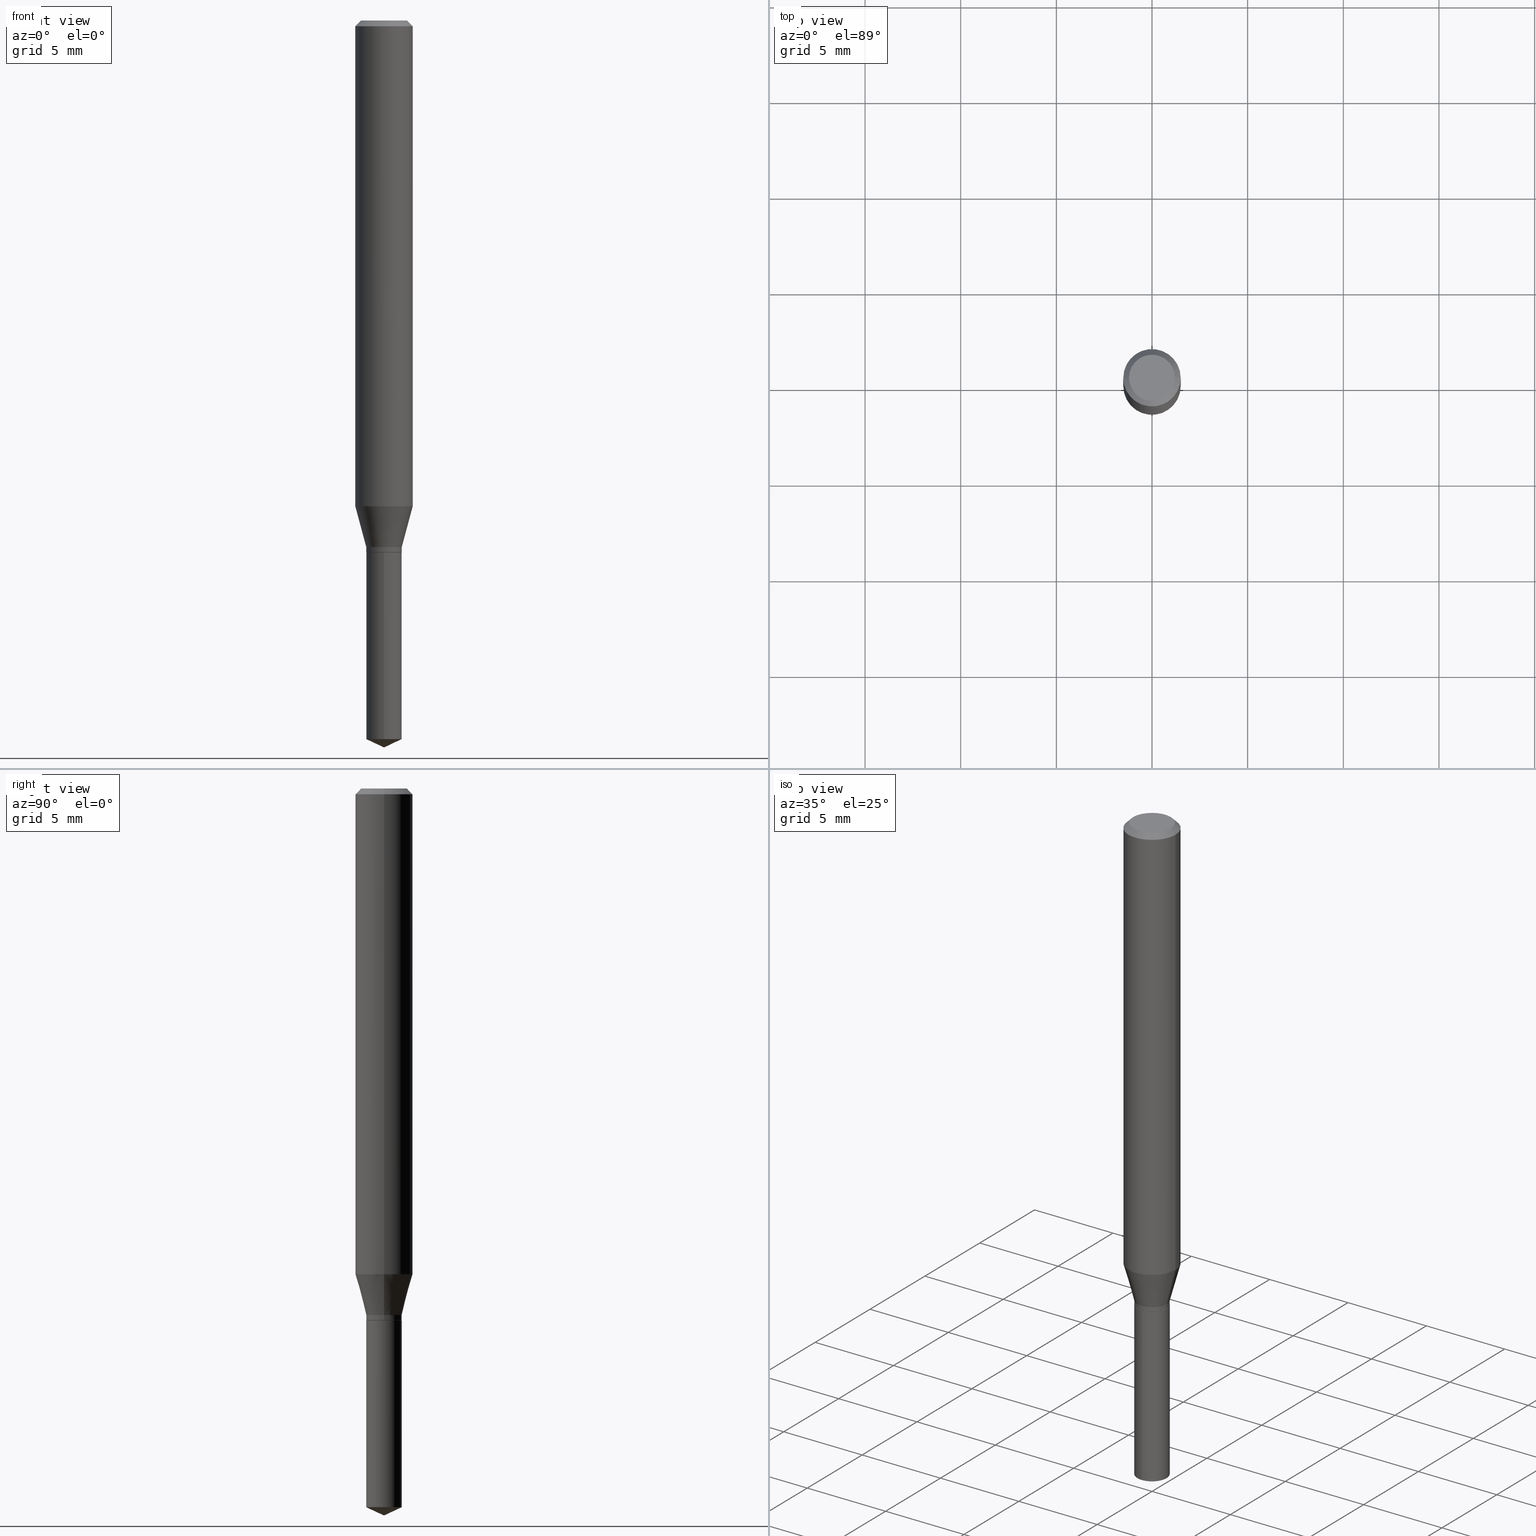
[diagram: canonical four-view strip — front | top / right | iso, engineering-drawing reading convention]
A machine part, canonical four-view strip (front | top / right | iso — engineering-drawing reading convention). The complete STEP part file that produces these views, byte-faithful:
ISO-10303-21;
HEADER;
FILE_DESCRIPTION (( 'STEP AP203' ),
    '1' );
FILE_NAME ('07928.STEP',
    '2024-04-24T06:26:27',
    ( '' ),
    ( '' ),
    'SwSTEP 2.0',
    'SolidWorks 2023',
    '' );
FILE_SCHEMA (( 'CONFIG_CONTROL_DESIGN' ));
ENDSEC;

DATA;
#1 = ORGANIZATION ( 'UNSPECIFIED', 'UNSPECIFIED', '' ) ;
#2 = ORIENTED_EDGE ( 'NONE', *, *, #397, .F. ) ;
#3 = DIRECTION ( 'NONE',  ( -2.445468806185136597E-29, 3.491481338843145583E-15, 1.000000000000000000 ) ) ;
#4 = CARTESIAN_POINT ( 'NONE',  ( 2.676565608369631794E-29, -3.821426325363822773E-15, -1.094499999999999806 ) ) ;
#5 = EDGE_CURVE ( 'NONE', #305, #262, #199, .T. ) ;
#6 = CARTESIAN_POINT ( 'NONE',  ( 2.888098660104663328E-31, -4.123439461173779030E-17, -0.01181000000000006871 ) ) ;
#7 = ORIENTED_EDGE ( 'NONE', *, *, #136, .F. ) ;
#8 = PRODUCT_DEFINITION_SHAPE ( 'NONE', 'NONE',  #40 ) ;
#9 = VERTEX_POINT ( 'NONE', #426 ) ;
#10 = VECTOR ( 'NONE', #433, 39.37007874015748143 ) ;
#11 = LOCAL_TIME ( 2, 26, 27.00000000000000000, #214 ) ;
#12 = DIRECTION ( 'NONE',  ( -2.445458899330790108E-29, 3.491495526022433599E-15, 1.000000000000000000 ) ) ;
#13 = CARTESIAN_POINT ( 'NONE',  ( -0.05904999999999999832, 3.711095515056362547E-16, -0.01181000000000006871 ) ) ;
#14 = DIRECTION ( 'NONE',  ( 2.445468806185136597E-29, -3.491481338843145583E-15, -1.000000000000000000 ) ) ;
#15 = EDGE_CURVE ( 'NONE', #238, #464, #88, .T. ) ;
#16 = DIRECTION ( 'NONE',  ( 6.439704144417024042E-15, 0.9063077870366512689, 0.4226182617406966657 ) ) ;
#17 = CYLINDRICAL_SURFACE ( 'NONE', #41, 0.05905000000000006771 ) ;
#18 = CIRCLE ( 'NONE', #280, 0.05905000000000013016 ) ;
#19 =( LENGTH_UNIT ( ) NAMED_UNIT ( * ) SI_UNIT ( $, .METRE. ) );
#20 = AXIS2_PLACEMENT_3D ( 'NONE', #106, #481, #217 ) ;
#21 = CIRCLE ( 'NONE', #100, 0.03659999999999995202 ) ;
#22 = VERTEX_POINT ( 'NONE', #318 ) ;
#23 = EDGE_CURVE ( 'NONE', #79, #246, #485, .T. ) ;
#24 = APPROVAL_ROLE ( '' ) ;
#25 = CIRCLE ( 'NONE', #400, 0.05904999999999999832 ) ;
#26 = CC_DESIGN_APPROVAL ( #355, ( #40 ) ) ;
#27 = SECURITY_CLASSIFICATION_LEVEL ( 'unclassified' ) ;
#28 = DIRECTION ( 'NONE',  ( 1.000000000000000000, -6.982962677686270655E-15, 0.000000000000000000 ) ) ;
#29 = ADVANCED_FACE ( 'NONE', ( #206 ), #391, .T. ) ;
#30 = ORIENTED_EDGE ( 'NONE', *, *, #163, .F. ) ;
#31 = COORDINATED_UNIVERSAL_TIME_OFFSET ( 5, 0, .BEHIND. ) ;
#32 = DIRECTION ( 'NONE',  ( 1.000000000000000000, -6.982962677686267499E-15, 0.000000000000000000 ) ) ;
#33 = VECTOR ( 'NONE', #12, 39.37007874015748143 ) ;
#34 = FACE_OUTER_BOUND ( 'NONE', #44, .T. ) ;
#35 = CYLINDRICAL_SURFACE ( 'NONE', #130, 0.05905000000000006771 ) ;
#36 = ORIENTED_EDGE ( 'NONE', *, *, #342, .F. ) ;
#37 = ORIENTED_EDGE ( 'NONE', *, *, #244, .T. ) ;
#38 = FACE_OUTER_BOUND ( 'NONE', #398, .T. ) ;
#39 = VECTOR ( 'NONE', #261, 39.37007874015748143 ) ;
#40 = PRODUCT_DEFINITION ( 'UNKNOWN', '', #144, #256 ) ;
#41 = AXIS2_PLACEMENT_3D ( 'NONE', #306, #462, #239 ) ;
#42 = DIRECTION ( 'NONE',  ( 1.000000000000000000, -6.982962677686267499E-15, 0.000000000000000000 ) ) ;
#43 = CARTESIAN_POINT ( 'NONE',  ( 0.03659999999999995202, -4.038596464639864917E-15, -1.083499999999999908 ) ) ;
#44 = EDGE_LOOP ( 'NONE', ( #213, #167, #266, #263 ) ) ;
#45 = EDGE_LOOP ( 'NONE', ( #439, #376 ) ) ;
#46 = CARTESIAN_POINT ( 'NONE',  ( 0.000000000000000000, 0.000000000000000000, 0.000000000000000000 ) ) ;
#47 = DIRECTION ( 'NONE',  ( -2.445468806185136597E-29, 3.491481338843145583E-15, 1.000000000000000000 ) ) ;
#48 = AXIS2_PLACEMENT_3D ( 'NONE', #98, #243, #401 ) ;
#49 = CONICAL_SURFACE ( 'NONE', #260, 0.03659999999999995202, 0.2617993877991501295 ) ;
#50 = CC_DESIGN_PERSON_AND_ORGANIZATION_ASSIGNMENT ( #340, #420, ( #194 ) ) ;
#51 = CARTESIAN_POINT ( 'NONE',  ( 0.03610000000000000014, -4.073511278028297355E-15, -1.094499999999999806 ) ) ;
#52 = ORIENTED_EDGE ( 'NONE', *, *, #430, .T. ) ;
#53 = DIRECTION ( 'NONE',  ( -6.982962677686265922E-15, -1.000000000000000000, 3.732032778229867436E-15 ) ) ;
#54 = DIRECTION ( 'NONE',  ( -6.982962677686265922E-15, -1.000000000000000000, 3.732032778229867436E-15 ) ) ;
#55 = EDGE_CURVE ( 'NONE', #258, #150, #132, .T. ) ;
#56 = AXIS2_PLACEMENT_3D ( 'NONE', #352, #77, #180 ) ;
#57 = DATE_AND_TIME ( #178, #93 ) ;
#58 = LOCAL_TIME ( 2, 26, 27.00000000000000000, #434 ) ;
#59 = CARTESIAN_POINT ( 'NONE',  ( -2.555764340032905703E-16, -0.03660000000000382392, -1.094499999999999806 ) ) ;
#60 = COORDINATED_UNIVERSAL_TIME_OFFSET ( 5, 0, .BEHIND. ) ;
#61 = ORIENTED_EDGE ( 'NONE', *, *, #187, .F. ) ;
#62 = CONICAL_SURFACE ( 'NONE', #143, 84.42940631927388040, 1.134464013796313786 ) ;
#63 = AXIS2_PLACEMENT_3D ( 'NONE', #139, #250, #112 ) ;
#64 = EDGE_CURVE ( 'NONE', #262, #305, #267, .T. ) ;
#65 = CARTESIAN_POINT ( 'NONE',  ( 2.888098660104663328E-31, -4.123439461173779030E-17, -0.01181000000000006871 ) ) ;
#66 = FACE_OUTER_BOUND ( 'NONE', #142, .T. ) ;
#67 = PERSON_AND_ORGANIZATION ( #129, #1 ) ;
#68 = CARTESIAN_POINT ( 'NONE',  ( 2.675342873966538993E-29, -3.819680584694400481E-15, -1.093999999999999861 ) ) ;
#69 = DIRECTION ( 'NONE',  ( 1.000000000000000000, -6.982962677686265922E-15, 4.876176775795935793E-29 ) ) ;
#70 = CARTESIAN_POINT ( 'NONE',  ( -0.03659999999999995202, -3.522961389348351691E-15, -1.083499999999999908 ) ) ;
#71 = FACE_OUTER_BOUND ( 'NONE', #45, .T. ) ;
#72 = DIRECTION ( 'NONE',  ( -2.445468806185136597E-29, 3.491481338843145583E-15, 1.000000000000000000 ) ) ;
#73 = ORIENTED_EDGE ( 'NONE', *, *, #237, .F. ) ;
#74 = CIRCLE ( 'NONE', #56, 0.03660000000000000059 ) ;
#75 = DIRECTION ( 'NONE',  ( 2.438088387897960049E-29, -3.491481338843145188E-15, -1.000000000000000000 ) ) ;
#76 = DIRECTION ( 'NONE',  ( -2.445468806185136597E-29, 3.491481338843145583E-15, 1.000000000000000000 ) ) ;
#77 = DIRECTION ( 'NONE',  ( -2.445458899330790108E-29, 3.491495526022433205E-15, 1.000000000000000000 ) ) ;
#78 = LINE ( 'NONE', #272, #92 ) ;
#79 = VERTEX_POINT ( 'NONE', #59 ) ;
#80 = DIRECTION ( 'NONE',  ( -6.328713451373368590E-15, -0.9063077870366483824, 0.4226182617407029940 ) ) ;
#81 = AXIS2_PLACEMENT_3D ( 'NONE', #183, #379, #69 ) ;
#82 = EDGE_CURVE ( 'NONE', #137, #150, #165, .T. ) ;
#83 = EDGE_LOOP ( 'NONE', ( #118, #380, #30 ) ) ;
#84 = CARTESIAN_POINT ( 'NONE',  ( 2.649665451501595207E-29, -3.783020030636548117E-15, -1.083499999999999908 ) ) ;
#85 = DIRECTION ( 'NONE',  ( 1.000000000000000000, -6.982962677686267499E-15, 0.000000000000000000 ) ) ;
#86 = ORIENTED_EDGE ( 'NONE', *, *, #196, .F. ) ;
#87 = LINE ( 'NONE', #234, #33 ) ;
#88 = LINE ( 'NONE', #431, #276 ) ;
#89 = EDGE_CURVE ( 'NONE', #137, #22, #18, .T. ) ;
#90 = FACE_OUTER_BOUND ( 'NONE', #489, .T. ) ;
#91 = ORIENTED_EDGE ( 'NONE', *, *, #249, .F. ) ;
#92 = VECTOR ( 'NONE', #228, 39.37007874015748143 ) ;
#93 = LOCAL_TIME ( 2, 26, 27.00000000000000000, #31 ) ;
#94 = CARTESIAN_POINT ( 'NONE',  ( 8.265746106709734507E-48, -1.180129479067563789E-33, -3.380025165646692144E-19 ) ) ;
#95 = ADVANCED_FACE ( 'NONE', ( #480 ), #219, .T. ) ;
#96 = ORIENTED_EDGE ( 'NONE', *, *, #196, .T. ) ;
#97 = APPLICATION_PROTOCOL_DEFINITION ( 'international standard', 'config_control_design', 1994, #354 ) ;
#98 = CARTESIAN_POINT ( 'NONE',  ( 2.676565608369631794E-29, -3.821426325363822773E-15, -1.094499999999999806 ) ) ;
#99 = VECTOR ( 'NONE', #166, 39.37007874015747433 ) ;
#100 = AXIS2_PLACEMENT_3D ( 'NONE', #68, #371, #32 ) ;
#101 = PERSON_AND_ORGANIZATION ( #129, #1 ) ;
#102 = ORIENTED_EDGE ( 'NONE', *, *, #15, .T. ) ;
#103 = APPROVAL_STATUS ( 'not_yet_approved' ) ;
#104 = EDGE_CURVE ( 'NONE', #246, #79, #74, .T. ) ;
#105 = VERTEX_POINT ( 'NONE', #223 ) ;
#106 = CARTESIAN_POINT ( 'NONE',  ( 2.676565608369631794E-29, -3.821426325363822773E-15, -1.094499999999999806 ) ) ;
#107 = EDGE_LOOP ( 'NONE', ( #121, #316, #86, #126 ) ) ;
#108 = DIRECTION ( 'NONE',  ( 2.445468806185136597E-29, -3.491481338843145583E-15, -1.000000000000000000 ) ) ;
#109 = ADVANCED_FACE ( 'NONE', ( #66 ), #372, .F. ) ;
#110 = CARTESIAN_POINT ( 'NONE',  ( -0.05904999999999999832, -1.346285647111344035E-15, -0.01181000000000006871 ) ) ;
#111 = CARTESIAN_POINT ( 'NONE',  ( -0.05905000000000006771, 4.195754854663396409E-16, -2.904631170795525045E-30 ) ) ;
#112 = DIRECTION ( 'NONE',  ( 1.000000000000000000, -6.982962677686267499E-15, 0.000000000000000000 ) ) ;
#113 = CARTESIAN_POINT ( 'NONE',  ( 2.888098660104663328E-31, -4.123439461173779030E-17, -0.01181000000000006871 ) ) ;
#114 = ORIENTED_EDGE ( 'NONE', *, *, #275, .T. ) ;
#115 = AXIS2_PLACEMENT_3D ( 'NONE', #149, #295, #450 ) ;
#116 = ORIENTED_EDGE ( 'NONE', *, *, #397, .T. ) ;
#117 = LENGTH_MEASURE_WITH_UNIT ( LENGTH_MEASURE( 0.02539999999999999897 ), #19 );
#118 = ORIENTED_EDGE ( 'NONE', *, *, #15, .F. ) ;
#119 = ADVANCED_FACE ( 'NONE', ( #335 ), #35, .T. ) ;
#120 = DIRECTION ( 'NONE',  ( -2.445458899330790108E-29, 3.491495526022433205E-15, 1.000000000000000000 ) ) ;
#121 = ORIENTED_EDGE ( 'NONE', *, *, #365, .T. ) ;
#122 = DIRECTION ( 'NONE',  ( -6.982962677686267499E-15, -1.000000000000000000, 3.520397390770472803E-15 ) ) ;
#123 = AXIS2_PLACEMENT_3D ( 'NONE', #293, #257, #288 ) ;
#124 = FACE_OUTER_BOUND ( 'NONE', #473, .T. ) ;
#125 = AXIS2_PLACEMENT_3D ( 'NONE', #396, #120, #122 ) ;
#126 = ORIENTED_EDGE ( 'NONE', *, *, #312, .F. ) ;
#127 = CARTESIAN_POINT ( 'NONE',  ( 2.444772970950570480E-29, -3.490487870543630905E-15, -0.9997154593700782188 ) ) ;
#128 = ADVANCED_FACE ( 'NONE', ( #412 ), #406, .T. ) ;
#129 = PERSON ( 'UNSPECIFIED', 'UNSPECIFIED', 'UNSPECIFIED', ('UNSPECIFIED'), ('UNSPECIFIED'), ('UNSPECIFIED') ) ;
#130 = AXIS2_PLACEMENT_3D ( 'NONE', #369, #188, #177 ) ;
#131 =( CONVERSION_BASED_UNIT ( 'INCH', #117 ) LENGTH_UNIT ( ) NAMED_UNIT ( #482 ) );
#132 = LINE ( 'NONE', #13, #10 ) ;
#133 = DATE_TIME_ROLE ( 'creation_date' ) ;
#134 = APPROVAL_DATE_TIME ( #402, #355 ) ;
#135 = CC_DESIGN_APPROVAL ( #265, ( #144 ) ) ;
#136 = EDGE_CURVE ( 'NONE', #258, #387, #357, .T. ) ;
#137 = VERTEX_POINT ( 'NONE', #212 ) ;
#138 = PERSON_AND_ORGANIZATION_ROLE ( 'creator' ) ;
#139 = CARTESIAN_POINT ( 'NONE',  ( 2.649665451501595207E-29, -3.783020030636548117E-15, -1.083499999999999908 ) ) ;
#140 = ORIENTED_EDGE ( 'NONE', *, *, #444, .F. ) ;
#141 = DIRECTION ( 'NONE',  ( -1.000000000000000000, 6.982962677686266711E-15, 0.000000000000000000 ) ) ;
#142 = EDGE_LOOP ( 'NONE', ( #224, #344 ) ) ;
#143 = AXIS2_PLACEMENT_3D ( 'NONE', #218, #146, #328 ) ;
#144 = PRODUCT_DEFINITION_FORMATION_WITH_SPECIFIED_SOURCE ( 'ANY', '', #194, .NOT_KNOWN. ) ;
#145 = LINE ( 'NONE', #447, #454 ) ;
#146 = DIRECTION ( 'NONE',  ( -2.445458899330790108E-29, 3.491495526022433205E-15, 1.000000000000000000 ) ) ;
#147 = ORIENTED_EDGE ( 'NONE', *, *, #136, .T. ) ;
#148 = DIRECTION ( 'NONE',  ( 1.000000000000000000, -6.982962677686267499E-15, 0.000000000000000000 ) ) ;
#149 = CARTESIAN_POINT ( 'NONE',  ( 2.676565608369631794E-29, -3.821426325363822773E-15, -1.094499999999999806 ) ) ;
#150 = VERTEX_POINT ( 'NONE', #110 ) ;
#151 = DIRECTION ( 'NONE',  ( -2.445468806185136877E-29, 3.491481338843145188E-15, 1.000000000000000000 ) ) ;
#152 = ORIENTED_EDGE ( 'NONE', *, *, #169, .F. ) ;
#153 = AXIS2_PLACEMENT_3D ( 'NONE', #274, #47, #360 ) ;
#154 = DIRECTION ( 'NONE',  ( 1.000000000000000000, 0.000000000000000000, 0.000000000000000000 ) ) ;
#155 = ORIENTED_EDGE ( 'NONE', *, *, #382, .F. ) ;
#156 = ADVANCED_FACE ( 'NONE', ( #446 ), #62, .T. ) ;
#157 = CARTESIAN_POINT ( 'NONE',  ( 2.600586412882233949E-16, 0.03659999999999618420, -1.094500000000000028 ) ) ;
#158 = DIRECTION ( 'NONE',  ( -2.445458899330790108E-29, 3.491495526022433205E-15, 1.000000000000000000 ) ) ;
#159 = EDGE_LOOP ( 'NONE', ( #170, #442, #116, #155 ) ) ;
#160 = CARTESIAN_POINT ( 'NONE',  ( 3.658651059288795076E-29, -5.223626456482161457E-15, -1.496099999999999985 ) ) ;
#161 = CARTESIAN_POINT ( 'NONE',  ( 2.888098660104663328E-31, -4.123439461173779030E-17, -0.01181000000000006871 ) ) ;
#162 = ORIENTED_EDGE ( 'NONE', *, *, #389, .F. ) ;
#163 = EDGE_CURVE ( 'NONE', #464, #419, #331, .T. ) ;
#164 = CONICAL_SURFACE ( 'NONE', #125, 84.42940631927388040, 1.134464013796313786 ) ;
#165 = LINE ( 'NONE', #111, #173 ) ;
#166 = DIRECTION ( 'NONE',  ( 0.2588190451025214611, 1.565188264969621573E-15, 0.9659258262890682012 ) ) ;
#167 = ORIENTED_EDGE ( 'NONE', *, *, #349, .T. ) ;
#168 = CIRCLE ( 'NONE', #63, 0.03659999999999995202 ) ;
#169 = EDGE_CURVE ( 'NONE', #419, #464, #453, .T. ) ;
#170 = ORIENTED_EDGE ( 'NONE', *, *, #244, .F. ) ;
#171 = ADVANCED_FACE ( 'NONE', ( #71 ), #487, .F. ) ;
#172 = CLOSED_SHELL ( 'NONE', ( #333, #286, #119, #404, #29, #95, #222, #484, #204, #410, #109, #128 ) ) ;
#173 = VECTOR ( 'NONE', #189, 39.37007874015748143 ) ;
#174 = PERSON_AND_ORGANIZATION ( #129, #1 ) ;
#175 = ORIENTED_EDGE ( 'NONE', *, *, #382, .T. ) ;
#176 = CARTESIAN_POINT ( 'NONE',  ( -0.03610000000000000014, -3.562271170580315256E-15, -1.094499999999999806 ) ) ;
#177 = DIRECTION ( 'NONE',  ( 1.000000000000000000, -6.982962677686266711E-15, 4.876176775795936353E-29 ) ) ;
#178 = CALENDAR_DATE ( 2024, 24, 4 ) ;
#179 = CC_DESIGN_PERSON_AND_ORGANIZATION_ASSIGNMENT ( #282, #403, ( #144 ) ) ;
#180 = DIRECTION ( 'NONE',  ( -6.982962677686265922E-15, -1.000000000000000000, 3.732032778229867436E-15 ) ) ;
#181 = CONICAL_SURFACE ( 'NONE', #242, 0.05904999999999999832, 0.7853981633974452814 ) ;
#182 = CARTESIAN_POINT ( 'NONE',  ( 2.649665451501595207E-29, -3.783020030636548117E-15, -1.083499999999999908 ) ) ;
#183 = CARTESIAN_POINT ( 'NONE',  ( 2.676565608369631794E-29, -3.821426325363822773E-15, -1.094499999999999806 ) ) ;
#184 = DIRECTION ( 'NONE',  ( 1.000000000000000000, -6.982962677686266711E-15, 0.000000000000000000 ) ) ;
#185 = ORIENTED_EDGE ( 'NONE', *, *, #163, .T. ) ;
#186 = CARTESIAN_POINT ( 'NONE',  ( 0.000000000000000000, 0.000000000000000000, 0.000000000000000000 ) ) ;
#187 = EDGE_CURVE ( 'NONE', #150, #337, #235, .T. ) ;
#188 = DIRECTION ( 'NONE',  ( -2.445468806185136597E-29, 3.491481338843145583E-15, 1.000000000000000000 ) ) ;
#189 = DIRECTION ( 'NONE',  ( -2.445468806185136877E-29, 3.491481338843145188E-15, 1.000000000000000000 ) ) ;
#190 = ORIENTED_EDGE ( 'NONE', *, *, #104, .F. ) ;
#191 = VECTOR ( 'NONE', #151, 39.37007874015748143 ) ;
#192 = AXIS2_PLACEMENT_3D ( 'NONE', #94, #3, #264 ) ;
#193 = ORIENTED_EDGE ( 'NONE', *, *, #169, .T. ) ;
#194 = PRODUCT ( '07928', '07928', '', ( #241 ) ) ;
#195 = VERTEX_POINT ( 'NONE', #43 ) ;
#196 = EDGE_CURVE ( 'NONE', #337, #150, #25, .T. ) ;
#197 = DIRECTION ( 'NONE',  ( -2.445468806185136597E-29, 3.491481338843145583E-15, 1.000000000000000000 ) ) ;
#198 = EDGE_LOOP ( 'NONE', ( #210, #102, #152 ) ) ;
#199 = CIRCLE ( 'NONE', #476, 0.03610000000000000014 ) ;
#200 = ORIENTED_EDGE ( 'NONE', *, *, #64, .T. ) ;
#201 = CARTESIAN_POINT ( 'NONE',  ( 0.03659999999999995202, -4.038596464639864917E-15, -1.083499999999999908 ) ) ;
#202 = EDGE_LOOP ( 'NONE', ( #140, #341, #96, #310 ) ) ;
#203 = LINE ( 'NONE', #157, #429 ) ;
#204 = ADVANCED_FACE ( 'NONE', ( #124 ), #181, .T. ) ;
#205 = DIRECTION ( 'NONE',  ( -2.445468806185136877E-29, 3.491481338843145188E-15, 1.000000000000000000 ) ) ;
#206 = FACE_OUTER_BOUND ( 'NONE', #416, .T. ) ;
#207 = CIRCLE ( 'NONE', #322, 0.03659999999999995202 ) ;
#208 = CC_DESIGN_PERSON_AND_ORGANIZATION_ASSIGNMENT ( #101, #329, ( #144 ) ) ;
#209 = DATE_AND_TIME ( #319, #281 ) ;
#210 = ORIENTED_EDGE ( 'NONE', *, *, #488, .F. ) ;
#211 = CARTESIAN_POINT ( 'NONE',  ( 0.05905000000000006771, -4.123439461173745257E-16, 2.879382386107503723E-30 ) ) ;
#212 = CARTESIAN_POINT ( 'NONE',  ( -0.05905000000000013016, -3.070912385077291412E-15, -0.9997154593700782188 ) ) ;
#213 = ORIENTED_EDGE ( 'NONE', *, *, #342, .T. ) ;
#214 = COORDINATED_UNIVERSAL_TIME_OFFSET ( 5, 0, .BEHIND. ) ;
#215 = DIRECTION ( 'NONE',  ( -2.445468806185136597E-29, 3.491481338843145583E-15, 1.000000000000000000 ) ) ;
#216 = CARTESIAN_POINT ( 'NONE',  ( 8.265746106709734507E-48, -1.180129479067563789E-33, -3.380025165646692144E-19 ) ) ;
#217 = DIRECTION ( 'NONE',  ( 1.000000000000000000, -6.982962677686270655E-15, 0.000000000000000000 ) ) ;
#218 = CARTESIAN_POINT ( 'NONE',  ( -9.261924752013118283E-28, 1.322368428517963298E-13, 37.87397874015748300 ) ) ;
#219 = CYLINDRICAL_SURFACE ( 'NONE', #289, 0.03659999999999995202 ) ;
#220 = DIRECTION ( 'NONE',  ( -0.2588190451025214611, 5.211531920934551042E-15, 0.9659258262890682012 ) ) ;
#221 = CARTESIAN_POINT ( 'NONE',  ( 3.616925596964795677E-29, -5.164022062273977810E-15, -1.479033139711527056 ) ) ;
#222 = ADVANCED_FACE ( 'NONE', ( #466 ), #299, .T. ) ;
#223 = CARTESIAN_POINT ( 'NONE',  ( -0.03659999999999995896, -3.541291666377277873E-15, -1.083499999999999908 ) ) ;
#224 = ORIENTED_EDGE ( 'NONE', *, *, #64, .F. ) ;
#225 = ORIENTED_EDGE ( 'NONE', *, *, #325, .F. ) ;
#226 = CONICAL_SURFACE ( 'NONE', #20, 0.03610000000000000014, 0.7853981633973630139 ) ;
#227 = DIRECTION ( 'NONE',  ( -1.000000000000000000, 6.982962677686265922E-15, -4.876176775795935793E-29 ) ) ;
#228 = DIRECTION ( 'NONE',  ( -0.7071067811864871766, 7.493145998870136435E-15, 0.7071067811866078578 ) ) ;
#229 = PRODUCT_RELATED_PRODUCT_CATEGORY ( 'detail', '', ( #194 ) ) ;
#230 = ORIENTED_EDGE ( 'NONE', *, *, #187, .T. ) ;
#231 = CARTESIAN_POINT ( 'NONE',  ( 2.600586412882328612E-16, 0.03659999999999483805, -1.479033139711527056 ) ) ;
#232 = LINE ( 'NONE', #427, #470 ) ;
#233 = ORIENTED_EDGE ( 'NONE', *, *, #389, .T. ) ;
#234 = CARTESIAN_POINT ( 'NONE',  ( -2.555764340032905703E-16, -0.03660000000000382392, -1.094499999999999806 ) ) ;
#235 = CIRCLE ( 'NONE', #347, 0.05904999999999999832 ) ;
#236 = CYLINDRICAL_SURFACE ( 'NONE', #428, 0.03660000000000000059 ) ;
#237 = EDGE_CURVE ( 'NONE', #461, #105, #232, .T. ) ;
#238 = VERTEX_POINT ( 'NONE', #345 ) ;
#239 = DIRECTION ( 'NONE',  ( 1.000000000000000000, -6.982962677686266711E-15, 4.876176775795936353E-29 ) ) ;
#240 = DIRECTION ( 'NONE',  ( 1.000000000000000000, -6.982962677686270655E-15, 0.000000000000000000 ) ) ;
#241 = MECHANICAL_CONTEXT ( 'NONE', #354, 'mechanical' ) ;
#242 = AXIS2_PLACEMENT_3D ( 'NONE', #161, #14, #270 ) ;
#243 = DIRECTION ( 'NONE',  ( -2.445468806185136597E-29, 3.491481338843145583E-15, 1.000000000000000000 ) ) ;
#244 = EDGE_CURVE ( 'NONE', #305, #461, #78, .T. ) ;
#245 = CALENDAR_DATE ( 2024, 24, 4 ) ;
#246 = VERTEX_POINT ( 'NONE', #425 ) ;
#247 = SHAPE_DEFINITION_REPRESENTATION ( #8, #405 ) ;
#248 = APPROVAL_PERSON_ORGANIZATION ( #67, #265, #320 ) ;
#249 = EDGE_CURVE ( 'NONE', #419, #79, #87, .T. ) ;
#250 = DIRECTION ( 'NONE',  ( -2.445468806185136597E-29, 3.491481338843145583E-15, 1.000000000000000000 ) ) ;
#251 = APPROVAL_ROLE ( '' ) ;
#252 = FACE_OUTER_BOUND ( 'NONE', #202, .T. ) ;
#253 = DIRECTION ( 'NONE',  ( 1.000000000000000000, -6.982962677686265133E-15, 0.000000000000000000 ) ) ;
#254 = DIRECTION ( 'NONE',  ( -6.982962677686265922E-15, -1.000000000000000000, 0.000000000000000000 ) ) ;
#255 = CARTESIAN_POINT ( 'NONE',  ( 2.675342873966538993E-29, -3.819680584694400481E-15, -1.093999999999999861 ) ) ;
#256 = DESIGN_CONTEXT ( 'detailed design', #303, 'design' ) ;
#257 = DIRECTION ( 'NONE',  ( -2.445458899330790108E-29, 3.491495526022433205E-15, 1.000000000000000000 ) ) ;
#258 = VERTEX_POINT ( 'NONE', #273 ) ;
#259 = ADVANCED_FACE ( 'NONE', ( #90 ), #236, .T. ) ;
#260 = AXIS2_PLACEMENT_3D ( 'NONE', #182, #334, #148 ) ;
#261 = DIRECTION ( 'NONE',  ( 0.7071067811865453523, -7.319954787623248157E-15, -0.7071067811865496822 ) ) ;
#262 = VERTEX_POINT ( 'NONE', #51 ) ;
#263 = ORIENTED_EDGE ( 'NONE', *, *, #275, .F. ) ;
#264 = DIRECTION ( 'NONE',  ( 1.000000000000000000, -6.982962677686266711E-15, 4.876185090822587894E-29 ) ) ;
#265 = APPROVAL ( #440, 'UNSPECIFIED' ) ;
#266 = ORIENTED_EDGE ( 'NONE', *, *, #365, .F. ) ;
#267 = CIRCLE ( 'NONE', #48, 0.03610000000000000014 ) ;
#268 = LOCAL_TIME ( 2, 26, 27.00000000000000000, #443 ) ;
#269 = FACE_OUTER_BOUND ( 'NONE', #455, .T. ) ;
#270 = DIRECTION ( 'NONE',  ( -1.000000000000000000, 6.982962677686266711E-15, 0.000000000000000000 ) ) ;
#271 = ORIENTED_EDGE ( 'NONE', *, *, #237, .T. ) ;
#272 = CARTESIAN_POINT ( 'NONE',  ( -0.03610000000000000014, -3.564920397754426457E-15, -1.094499999999999806 ) ) ;
#273 = CARTESIAN_POINT ( 'NONE',  ( -0.04724000000000000421, 3.504923541997677355E-16, -3.380025165670481712E-19 ) ) ;
#274 = CARTESIAN_POINT ( 'NONE',  ( 0.000000000000000000, 0.000000000000000000, 0.000000000000000000 ) ) ;
#275 = EDGE_CURVE ( 'NONE', #195, #22, #460, .T. ) ;
#276 = VECTOR ( 'NONE', #16, 39.37007874015748143 ) ;
#277 =( NAMED_UNIT ( * ) PLANE_ANGLE_UNIT ( ) SI_UNIT ( $, .RADIAN. ) );
#278 = CARTESIAN_POINT ( 'NONE',  ( -2.555764340032811533E-16, -0.03660000000000517006, -1.479033139711527056 ) ) ;
#279 = UNCERTAINTY_MEASURE_WITH_UNIT (LENGTH_MEASURE( 1.000000000000000082E-05 ), #131, 'distance_accuracy_value', 'NONE');
#280 = AXIS2_PLACEMENT_3D ( 'NONE', #127, #366, #253 ) ;
#281 = LOCAL_TIME ( 2, 26, 27.00000000000000000, #60 ) ;
#282 = PERSON_AND_ORGANIZATION ( #129, #1 ) ;
#283 = DATE_TIME_ROLE ( 'classification_date' ) ;
#284 = EDGE_LOOP ( 'NONE', ( #363, #388, #114, #395 ) ) ;
#285 = APPROVAL_DATE_TIME ( #438, #265 ) ;
#286 = ADVANCED_FACE ( 'NONE', ( #252 ), #435, .T. ) ;
#287 = CARTESIAN_POINT ( 'NONE',  ( 0.05904999999999999832, -4.535783407291118600E-16, -0.01181000000000006871 ) ) ;
#288 = DIRECTION ( 'NONE',  ( -6.982962677686265922E-15, -1.000000000000000000, 0.000000000000000000 ) ) ;
#289 = AXIS2_PLACEMENT_3D ( 'NONE', #46, #72, #304 ) ;
#290 = ORIENTED_EDGE ( 'NONE', *, *, #312, .T. ) ;
#291 = VECTOR ( 'NONE', #205, 39.37007874015748143 ) ;
#292 = DIRECTION ( 'NONE',  ( 1.000000000000000000, -6.982962677686265133E-15, 0.000000000000000000 ) ) ;
#293 = CARTESIAN_POINT ( 'NONE',  ( 3.616925596964795677E-29, -5.164022062273977810E-15, -1.479033139711527056 ) ) ;
#294 = FACE_OUTER_BOUND ( 'NONE', #307, .T. ) ;
#295 = DIRECTION ( 'NONE',  ( 2.445458899330789267E-29, -3.491495526022433599E-15, -1.000000000000000000 ) ) ;
#296 = ORIENTED_EDGE ( 'NONE', *, *, #249, .T. ) ;
#297 = LINE ( 'NONE', #411, #39 ) ;
#298 = EDGE_LOOP ( 'NONE', ( #200, #37, #162, #2 ) ) ;
#299 = CONICAL_SURFACE ( 'NONE', #384, 0.03659999999999995202, 0.2617993877991501295 ) ;
#300 = APPROVAL_PERSON_ORGANIZATION ( #370, #437, #24 ) ;
#301 =( NAMED_UNIT ( * ) SI_UNIT ( $, .STERADIAN. ) SOLID_ANGLE_UNIT ( ) );
#302 = ORIENTED_EDGE ( 'NONE', *, *, #417, .F. ) ;
#303 = APPLICATION_CONTEXT ( 'configuration controlled 3d designs of mechanical parts and assemblies' ) ;
#304 = DIRECTION ( 'NONE',  ( 1.000000000000000000, -6.982962677686265922E-15, 4.876176775795935793E-29 ) ) ;
#305 = VERTEX_POINT ( 'NONE', #176 ) ;
#306 = CARTESIAN_POINT ( 'NONE',  ( 0.000000000000000000, 0.000000000000000000, 0.000000000000000000 ) ) ;
#307 = EDGE_LOOP ( 'NONE', ( #147, #421 ) ) ;
#308 = AXIS2_PLACEMENT_3D ( 'NONE', #445, #368, #292 ) ;
#309 = DIRECTION ( 'NONE',  ( 1.000000000000000000, -6.982962677686266711E-15, 0.000000000000000000 ) ) ;
#310 = ORIENTED_EDGE ( 'NONE', *, *, #55, .F. ) ;
#311 = MANIFOLD_SOLID_BREP ( 'Body-Move/Copy2[1]', #392 ) ;
#312 = EDGE_CURVE ( 'NONE', #22, #337, #378, .T. ) ;
#313 = CARTESIAN_POINT ( 'NONE',  ( 2.676565608369631794E-29, -3.821426325363822773E-15, -1.094499999999999806 ) ) ;
#314 = DIRECTION ( 'NONE',  ( -2.445468806185136597E-29, 3.491481338843145583E-15, 1.000000000000000000 ) ) ;
#315 = AXIS2_PLACEMENT_3D ( 'NONE', #407, #76, #28 ) ;
#316 = ORIENTED_EDGE ( 'NONE', *, *, #82, .T. ) ;
#317 = CC_DESIGN_PERSON_AND_ORGANIZATION_ASSIGNMENT ( #364, #479, ( #339 ) ) ;
#318 = CARTESIAN_POINT ( 'NONE',  ( 0.05905000000000013016, -3.902831816661005825E-15, -0.9997154593700782188 ) ) ;
#319 = CALENDAR_DATE ( 2024, 24, 4 ) ;
#320 = APPROVAL_ROLE ( '' ) ;
#321 = AXIS2_PLACEMENT_3D ( 'NONE', #216, #330, #452 ) ;
#322 = AXIS2_PLACEMENT_3D ( 'NONE', #84, #314, #42 ) ;
#323 = MANIFOLD_SOLID_BREP ( 'Body-Move/Copy2[2]', #172 ) ;
#324 = DATE_AND_TIME ( #245, #11 ) ;
#325 = EDGE_CURVE ( 'NONE', #387, #337, #297, .T. ) ;
#326 = CALENDAR_DATE ( 2024, 24, 4 ) ;
#327 = CARTESIAN_POINT ( 'NONE',  ( 0.04724000000000000421, -3.852183633974369345E-16, -3.380025165621689721E-19 ) ) ;
#328 = DIRECTION ( 'NONE',  ( -6.982962677686267499E-15, -1.000000000000000000, 3.520397390770472803E-15 ) ) ;
#329 = PERSON_AND_ORGANIZATION_ROLE ( 'creator' ) ;
#330 = DIRECTION ( 'NONE',  ( -2.445468806185136597E-29, 3.491481338843145583E-15, 1.000000000000000000 ) ) ;
#331 = CIRCLE ( 'NONE', #123, 0.03660000000000000059 ) ;
#332 =( GEOMETRIC_REPRESENTATION_CONTEXT ( 3 ) GLOBAL_UNCERTAINTY_ASSIGNED_CONTEXT ( ( #279 ) ) GLOBAL_UNIT_ASSIGNED_CONTEXT ( ( #131, #277, #301 ) ) REPRESENTATION_CONTEXT ( 'NONE', 'WORKASPACE' ) );
#333 = ADVANCED_FACE ( 'NONE', ( #441 ), #226, .T. ) ;
#334 = DIRECTION ( 'NONE',  ( -2.445468806185136597E-29, 3.491481338843145583E-15, 1.000000000000000000 ) ) ;
#335 = FACE_OUTER_BOUND ( 'NONE', #107, .T. ) ;
#336 = ORIENTED_EDGE ( 'NONE', *, *, #463, .T. ) ;
#337 = VERTEX_POINT ( 'NONE', #287 ) ;
#338 = AXIS2_PLACEMENT_3D ( 'NONE', #221, #448, #254 ) ;
#339 = SECURITY_CLASSIFICATION ( '', '', #27 ) ;
#340 = PERSON_AND_ORGANIZATION ( #129, #1 ) ;
#341 = ORIENTED_EDGE ( 'NONE', *, *, #325, .T. ) ;
#342 = EDGE_CURVE ( 'NONE', #195, #105, #168, .T. ) ;
#343 = APPLICATION_PROTOCOL_DEFINITION ( 'international standard', 'config_control_design', 1994, #303 ) ;
#344 = ORIENTED_EDGE ( 'NONE', *, *, #5, .F. ) ;
#345 = CARTESIAN_POINT ( 'NONE',  ( 3.658651059288794515E-29, -5.223626456482161457E-15, -1.496099999999999985 ) ) ;
#346 = ORIENTED_EDGE ( 'NONE', *, *, #82, .F. ) ;
#347 = AXIS2_PLACEMENT_3D ( 'NONE', #113, #377, #184 ) ;
#348 = CIRCLE ( 'NONE', #477, 0.03659999999999995202 ) ;
#349 = EDGE_CURVE ( 'NONE', #105, #137, #409, .T. ) ;
#350 = CARTESIAN_POINT ( 'NONE',  ( 2.676565608369631794E-29, -3.821426325363822773E-15, -1.094499999999999806 ) ) ;
#351 = DIRECTION ( 'NONE',  ( -2.445468806185136597E-29, 3.491481338843145583E-15, 1.000000000000000000 ) ) ;
#352 = CARTESIAN_POINT ( 'NONE',  ( 2.676565608369631794E-29, -3.821426325363822773E-15, -1.094499999999999806 ) ) ;
#353 = CYLINDRICAL_SURFACE ( 'NONE', #422, 0.03660000000000000059 ) ;
#354 = APPLICATION_CONTEXT ( 'configuration controlled 3d designs of mechanical parts and assemblies' ) ;
#355 = APPROVAL ( #475, 'UNSPECIFIED' ) ;
#356 = CARTESIAN_POINT ( 'NONE',  ( -0.03659999999999995202, -3.541291666377277873E-15, -1.093999999999999861 ) ) ;
#357 = CIRCLE ( 'NONE', #321, 0.04724000000000000421 ) ;
#358 = AXIS2_PLACEMENT_3D ( 'NONE', #186, #490, #154 ) ;
#359 = CIRCLE ( 'NONE', #192, 0.04724000000000000421 ) ;
#360 = DIRECTION ( 'NONE',  ( 1.000000000000000000, -6.982962677686265922E-15, 4.876176775795935793E-29 ) ) ;
#361 = PERSON_AND_ORGANIZATION ( #129, #1 ) ;
#362 = CALENDAR_DATE ( 2024, 24, 4 ) ;
#363 = ORIENTED_EDGE ( 'NONE', *, *, #349, .F. ) ;
#364 = PERSON_AND_ORGANIZATION ( #129, #1 ) ;
#365 = EDGE_CURVE ( 'NONE', #22, #137, #465, .T. ) ;
#366 = DIRECTION ( 'NONE',  ( -2.445468806185136597E-29, 3.491481338843145583E-15, 1.000000000000000000 ) ) ;
#367 = AXIS2_PLACEMENT_3D ( 'NONE', #350, #467, #54 ) ;
#368 = DIRECTION ( 'NONE',  ( -2.445468806185136597E-29, 3.491481338843145583E-15, 1.000000000000000000 ) ) ;
#369 = CARTESIAN_POINT ( 'NONE',  ( 0.000000000000000000, 0.000000000000000000, 0.000000000000000000 ) ) ;
#370 = PERSON_AND_ORGANIZATION ( #129, #1 ) ;
#371 = DIRECTION ( 'NONE',  ( -2.445468806185136597E-29, 3.491481338843145583E-15, 1.000000000000000000 ) ) ;
#372 = PLANE ( 'NONE',  #81 ) ;
#373 = CC_DESIGN_DATE_AND_TIME_ASSIGNMENT ( #209, #283, ( #339 ) ) ;
#374 = DIRECTION ( 'NONE',  ( 0.7071067811864871766, -2.468850131081624789E-15, 0.7071067811866078578 ) ) ;
#375 = AXIS2_PLACEMENT_3D ( 'NONE', #413, #75, #227 ) ;
#376 = ORIENTED_EDGE ( 'NONE', *, *, #104, .T. ) ;
#377 = DIRECTION ( 'NONE',  ( -2.445468806185136597E-29, 3.491481338843145583E-15, 1.000000000000000000 ) ) ;
#378 = LINE ( 'NONE', #211, #191 ) ;
#379 = DIRECTION ( 'NONE',  ( -2.438088387897960049E-29, 3.491481338843145188E-15, 1.000000000000000000 ) ) ;
#380 = ORIENTED_EDGE ( 'NONE', *, *, #488, .T. ) ;
#381 = LINE ( 'NONE', #459, #291 ) ;
#382 = EDGE_CURVE ( 'NONE', #461, #9, #348, .T. ) ;
#383 = ORIENTED_EDGE ( 'NONE', *, *, #430, .F. ) ;
#384 = AXIS2_PLACEMENT_3D ( 'NONE', #390, #197, #85 ) ;
#385 = CC_DESIGN_SECURITY_CLASSIFICATION ( #339, ( #144 ) ) ;
#386 = LINE ( 'NONE', #160, #393 ) ;
#387 = VERTEX_POINT ( 'NONE', #327 ) ;
#388 = ORIENTED_EDGE ( 'NONE', *, *, #417, .T. ) ;
#389 = EDGE_CURVE ( 'NONE', #9, #461, #21, .T. ) ;
#390 = CARTESIAN_POINT ( 'NONE',  ( 2.649665451501595207E-29, -3.783020030636548117E-15, -1.083499999999999908 ) ) ;
#391 = CYLINDRICAL_SURFACE ( 'NONE', #153, 0.03659999999999995202 ) ;
#392 = CLOSED_SHELL ( 'NONE', ( #259, #456, #156, #468, #171 ) ) ;
#393 = VECTOR ( 'NONE', #80, 39.37007874015748143 ) ;
#394 = DIRECTION ( 'NONE',  ( -6.982962677686265922E-15, -1.000000000000000000, 3.732032778229867436E-15 ) ) ;
#395 = ORIENTED_EDGE ( 'NONE', *, *, #89, .F. ) ;
#396 = CARTESIAN_POINT ( 'NONE',  ( -9.261924752013118283E-28, 1.322368428517963298E-13, 37.87397874015748300 ) ) ;
#397 = EDGE_CURVE ( 'NONE', #262, #9, #145, .T. ) ;
#398 = EDGE_LOOP ( 'NONE', ( #346, #415, #290, #61 ) ) ;
#399 = CARTESIAN_POINT ( 'NONE',  ( 2.676565608369631794E-29, -3.821426325363822773E-15, -1.094499999999999806 ) ) ;
#400 = AXIS2_PLACEMENT_3D ( 'NONE', #6, #351, #309 ) ;
#401 = DIRECTION ( 'NONE',  ( 1.000000000000000000, -6.982962677686270655E-15, 0.000000000000000000 ) ) ;
#402 = DATE_AND_TIME ( #362, #268 ) ;
#403 = PERSON_AND_ORGANIZATION_ROLE ( 'design_supplier' ) ;
#404 = ADVANCED_FACE ( 'NONE', ( #34 ), #49, .T. ) ;
#405 = ADVANCED_BREP_SHAPE_REPRESENTATION ( '07928', ( #311, #323, #358 ), #332 ) ;
#406 = CONICAL_SURFACE ( 'NONE', #315, 0.03610000000000000014, 0.7853981633973630139 ) ;
#407 = CARTESIAN_POINT ( 'NONE',  ( 2.676565608369631794E-29, -3.821426325363822773E-15, -1.094499999999999806 ) ) ;
#408 = VECTOR ( 'NONE', #220, 39.37007874015747433 ) ;
#409 = LINE ( 'NONE', #70, #408 ) ;
#410 = ADVANCED_FACE ( 'NONE', ( #294 ), #449, .F. ) ;
#411 = CARTESIAN_POINT ( 'NONE',  ( 0.05904999999999999832, -4.463468013801466955E-16, -0.01181000000000006871 ) ) ;
#412 = FACE_OUTER_BOUND ( 'NONE', #159, .T. ) ;
#413 = CARTESIAN_POINT ( 'NONE',  ( 4.132873053354867254E-48, -5.900647395337818946E-34, -1.690012582823346072E-19 ) ) ;
#414 = AXIS2_PLACEMENT_3D ( 'NONE', #65, #108, #141 ) ;
#415 = ORIENTED_EDGE ( 'NONE', *, *, #89, .T. ) ;
#416 = EDGE_LOOP ( 'NONE', ( #233, #271, #36, #383 ) ) ;
#417 = EDGE_CURVE ( 'NONE', #105, #195, #207, .T. ) ;
#418 = DIRECTION ( 'NONE',  ( -2.445468806185136877E-29, 3.491481338843145188E-15, 1.000000000000000000 ) ) ;
#419 = VERTEX_POINT ( 'NONE', #278 ) ;
#420 = PERSON_AND_ORGANIZATION_ROLE ( 'design_owner' ) ;
#421 = ORIENTED_EDGE ( 'NONE', *, *, #444, .T. ) ;
#422 = AXIS2_PLACEMENT_3D ( 'NONE', #399, #432, #53 ) ;
#423 = CC_DESIGN_PERSON_AND_ORGANIZATION_ASSIGNMENT ( #361, #138, ( #40 ) ) ;
#424 = ORIENTED_EDGE ( 'NONE', *, *, #55, .T. ) ;
#425 = CARTESIAN_POINT ( 'NONE',  ( 2.600586412882328119E-16, 0.03659999999999617726, -1.094500000000000028 ) ) ;
#426 = CARTESIAN_POINT ( 'NONE',  ( 0.03659999999999995202, -4.075257018697718070E-15, -1.093999999999999861 ) ) ;
#427 = CARTESIAN_POINT ( 'NONE',  ( -0.03659999999999995202, 2.600586412881963271E-16, -1.800330243033293044E-30 ) ) ;
#428 = AXIS2_PLACEMENT_3D ( 'NONE', #4, #158, #394 ) ;
#429 = VECTOR ( 'NONE', #457, 39.37007874015748143 ) ;
#430 = EDGE_CURVE ( 'NONE', #9, #195, #381, .T. ) ;
#431 = CARTESIAN_POINT ( 'NONE',  ( 3.658672935554494692E-29, -5.223595400746700193E-15, -1.496099999999999985 ) ) ;
#432 = DIRECTION ( 'NONE',  ( -2.445458899330790108E-29, 3.491495526022433205E-15, 1.000000000000000000 ) ) ;
#433 = DIRECTION ( 'NONE',  ( -0.7071067811865453523, 2.468850131082234184E-15, -0.7071067811865496822 ) ) ;
#434 = COORDINATED_UNIVERSAL_TIME_OFFSET ( 5, 0, .BEHIND. ) ;
#435 = CONICAL_SURFACE ( 'NONE', #414, 0.05904999999999999832, 0.7853981633974452814 ) ;
#436 = CC_DESIGN_APPROVAL ( #437, ( #339 ) ) ;
#437 = APPROVAL ( #103, 'UNSPECIFIED' ) ;
#438 = DATE_AND_TIME ( #326, #58 ) ;
#439 = ORIENTED_EDGE ( 'NONE', *, *, #23, .T. ) ;
#440 = APPROVAL_STATUS ( 'not_yet_approved' ) ;
#441 = FACE_OUTER_BOUND ( 'NONE', #298, .T. ) ;
#442 = ORIENTED_EDGE ( 'NONE', *, *, #5, .T. ) ;
#443 = COORDINATED_UNIVERSAL_TIME_OFFSET ( 5, 0, .BEHIND. ) ;
#444 = EDGE_CURVE ( 'NONE', #387, #258, #359, .T. ) ;
#445 = CARTESIAN_POINT ( 'NONE',  ( 2.444772970950570480E-29, -3.490487870543630905E-15, -0.9997154593700782188 ) ) ;
#446 = FACE_OUTER_BOUND ( 'NONE', #83, .T. ) ;
#447 = CARTESIAN_POINT ( 'NONE',  ( 0.03610000000000000014, -4.073511278028297355E-15, -1.094499999999999806 ) ) ;
#448 = DIRECTION ( 'NONE',  ( -2.445458899330790108E-29, 3.491495526022433205E-15, 1.000000000000000000 ) ) ;
#449 = PLANE ( 'NONE',  #375 ) ;
#450 = DIRECTION ( 'NONE',  ( 6.982962677686265922E-15, 1.000000000000000000, -3.491495526022433599E-15 ) ) ;
#451 = EDGE_LOOP ( 'NONE', ( #73, #175, #52, #302 ) ) ;
#452 = DIRECTION ( 'NONE',  ( 1.000000000000000000, -6.982962677686266711E-15, 4.876185090822587894E-29 ) ) ;
#453 = CIRCLE ( 'NONE', #338, 0.03660000000000000059 ) ;
#454 = VECTOR ( 'NONE', #374, 39.37007874015748143 ) ;
#455 = EDGE_LOOP ( 'NONE', ( #458, #185, #296, #190 ) ) ;
#456 = ADVANCED_FACE ( 'NONE', ( #469 ), #164, .T. ) ;
#457 = DIRECTION ( 'NONE',  ( -2.445458899330790108E-29, 3.491495526022433599E-15, 1.000000000000000000 ) ) ;
#458 = ORIENTED_EDGE ( 'NONE', *, *, #463, .F. ) ;
#459 = CARTESIAN_POINT ( 'NONE',  ( 0.03659999999999995202, -2.555764340033169972E-16, 1.784680699941310205E-30 ) ) ;
#460 = LINE ( 'NONE', #201, #99 ) ;
#461 = VERTEX_POINT ( 'NONE', #356 ) ;
#462 = DIRECTION ( 'NONE',  ( -2.445468806185136597E-29, 3.491481338843145583E-15, 1.000000000000000000 ) ) ;
#463 = EDGE_CURVE ( 'NONE', #464, #246, #203, .T. ) ;
#464 = VERTEX_POINT ( 'NONE', #231 ) ;
#465 = CIRCLE ( 'NONE', #308, 0.05905000000000013016 ) ;
#466 = FACE_OUTER_BOUND ( 'NONE', #284, .T. ) ;
#467 = DIRECTION ( 'NONE',  ( -2.445458899330790108E-29, 3.491495526022433205E-15, 1.000000000000000000 ) ) ;
#468 = ADVANCED_FACE ( 'NONE', ( #269 ), #353, .T. ) ;
#469 = FACE_OUTER_BOUND ( 'NONE', #198, .T. ) ;
#470 = VECTOR ( 'NONE', #418, 39.37007874015748143 ) ;
#471 = APPROVAL_PERSON_ORGANIZATION ( #174, #355, #251 ) ;
#472 = DIRECTION ( 'NONE',  ( -2.445468806185136597E-29, 3.491481338843145583E-15, 1.000000000000000000 ) ) ;
#473 = EDGE_LOOP ( 'NONE', ( #225, #7, #424, #230 ) ) ;
#474 = CC_DESIGN_DATE_AND_TIME_ASSIGNMENT ( #324, #133, ( #40 ) ) ;
#475 = APPROVAL_STATUS ( 'not_yet_approved' ) ;
#476 = AXIS2_PLACEMENT_3D ( 'NONE', #313, #472, #240 ) ;
#477 = AXIS2_PLACEMENT_3D ( 'NONE', #255, #215, #486 ) ;
#478 = ORIENTED_EDGE ( 'NONE', *, *, #23, .F. ) ;
#479 = PERSON_AND_ORGANIZATION_ROLE ( 'classification_officer' ) ;
#480 = FACE_OUTER_BOUND ( 'NONE', #451, .T. ) ;
#481 = DIRECTION ( 'NONE',  ( -2.445468806185136597E-29, 3.491481338843145583E-15, 1.000000000000000000 ) ) ;
#482 = DIMENSIONAL_EXPONENTS ( 1.000000000000000000, 0.000000000000000000, 0.000000000000000000, 0.000000000000000000, 0.000000000000000000, 0.000000000000000000, 0.000000000000000000 ) ;
#483 = APPROVAL_DATE_TIME ( #57, #437 ) ;
#484 = ADVANCED_FACE ( 'NONE', ( #38 ), #17, .T. ) ;
#485 = CIRCLE ( 'NONE', #367, 0.03660000000000000059 ) ;
#486 = DIRECTION ( 'NONE',  ( 1.000000000000000000, -6.982962677686267499E-15, 0.000000000000000000 ) ) ;
#487 = PLANE ( 'NONE',  #115 ) ;
#488 = EDGE_CURVE ( 'NONE', #238, #419, #386, .T. ) ;
#489 = EDGE_LOOP ( 'NONE', ( #193, #336, #478, #91 ) ) ;
#490 = DIRECTION ( 'NONE',  ( 0.000000000000000000, 0.000000000000000000, 1.000000000000000000 ) ) ;
ENDSEC;
END-ISO-10303-21;
